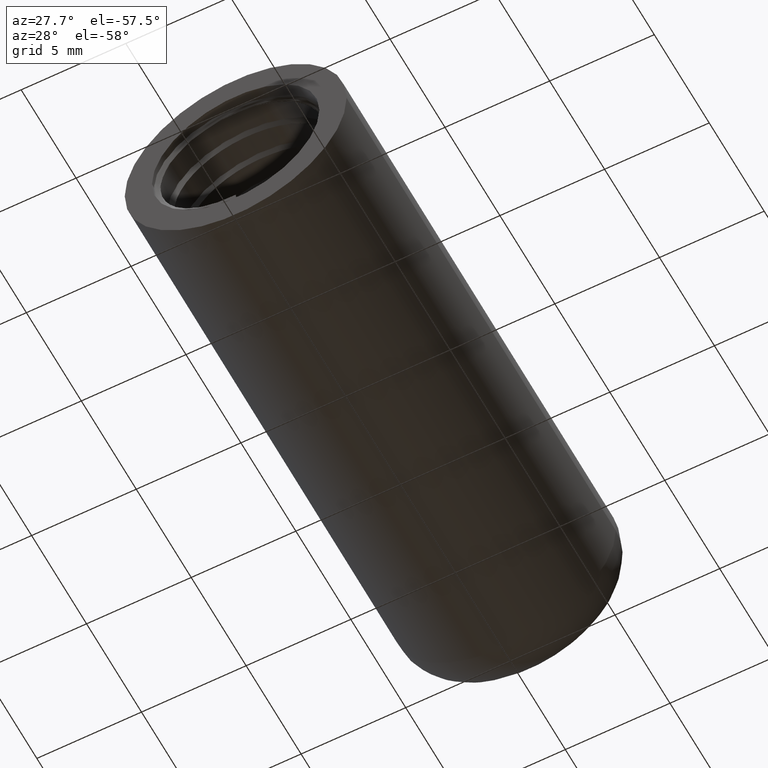
[diagram: clean part render]
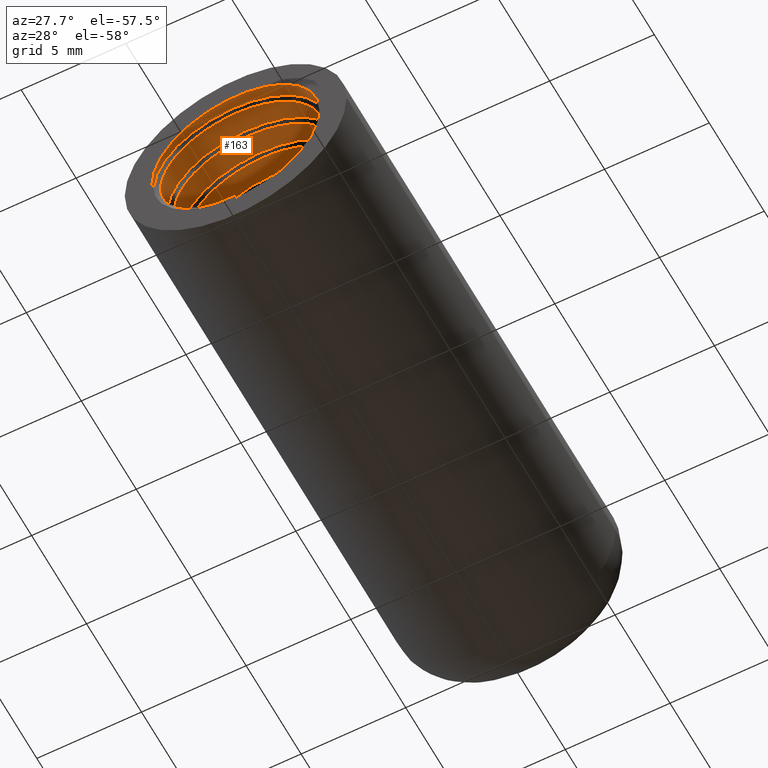
[diagram: same view with one face highlighted and labeled with its STEP entity id]
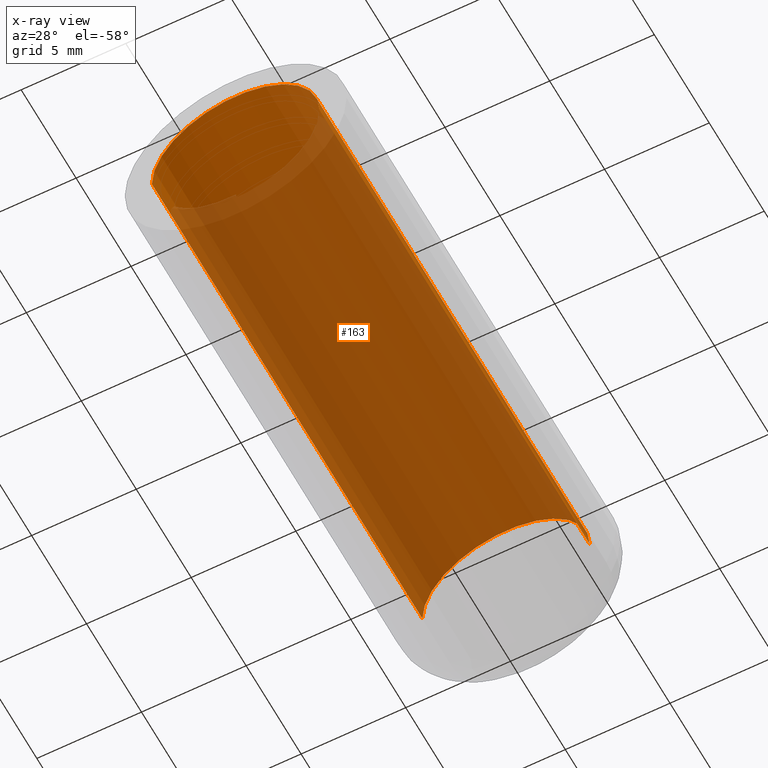
[diagram: x-ray of the same camera — body ghosted, the highlighted face saturated]
A machine part, auxiliary view. The second image highlights one B-rep face of the part: STEP entity #163.
The next image is the same camera in x-ray: the body ghosted, the highlighted face saturated — about 85% of this face is hidden behind the body in this view.
In plain terms, the highlighted cylindrical surface (partial cylindrical patch) has radius 4 mm, axis along (-0, 1, 0).
Its self-contained STEP definition (entity closure, byte-faithful):
#163=ADVANCED_FACE('',(#333),#334,.F.);
#333=FACE_OUTER_BOUND('',#2164,.T.);
#334=CYLINDRICAL_SURFACE('',#2165,4.0);
#2164=EDGE_LOOP('',(#2816,#2817,#2818,#2819));
#2165=AXIS2_PLACEMENT_3D('',#2820,#2821,#2822);
#2816=ORIENTED_EDGE('',*,*,#2862,.T.);
#2817=ORIENTED_EDGE('',*,*,#3059,.T.);
#2818=ORIENTED_EDGE('',*,*,#2864,.T.);
#2819=ORIENTED_EDGE('',*,*,#2859,.F.);
#2820=CARTESIAN_POINT('',(0.0,0.0,0.0));
#2821=DIRECTION('',(-0.0,1.0,0.0));
#2822=DIRECTION('',(1.0,0.0,-6.12323399573677E-17));
#2859=EDGE_CURVE('',#3078,#3081,#3082,.T.);
#2862=EDGE_CURVE('',#3078,#3086,#3087,.T.);
#2864=EDGE_CURVE('',#3089,#3081,#3090,.T.);
#3059=EDGE_CURVE('',#3086,#3089,#3412,.T.);
#3078=VERTEX_POINT('',#4282);
#3081=VERTEX_POINT('',#4285);
#3082=CIRCLE('',#4286,4.0);
#3086=VERTEX_POINT('',#4290);
#3087=LINE('',#4291,#4292);
#3089=VERTEX_POINT('',#4294);
#3090=LINE('',#4295,#4296);
#3412=CIRCLE('',#4728,4.0);
#4282=CARTESIAN_POINT('',(4.0,24.6100323380645,-2.44929359829471E-16));
#4285=CARTESIAN_POINT('',(-4.0,24.6100323380645,-2.4492935982947E-16));
#4286=AXIS2_PLACEMENT_3D('',#4733,#4734,#4735);
#4290=CARTESIAN_POINT('',(4.0,0.0,-2.44929359829471E-16));
#4291=CARTESIAN_POINT('',(4.0,0.0,2.4492935982947E-16));
#4292=VECTOR('',#4742,1.0);
#4294=CARTESIAN_POINT('',(-4.0,0.0,-2.4492935982947E-16));
#4295=CARTESIAN_POINT('',(-4.0,0.0,-2.4492935982947E-16));
#4296=VECTOR('',#4746,1.0);
#4728=AXIS2_PLACEMENT_3D('',#5153,#5154,#5155);
#4733=CARTESIAN_POINT('',(0.0,24.6100323380645,0.0));
#4734=DIRECTION('',(0.0,-1.0,0.0));
#4735=DIRECTION('',(1.0,0.0,-6.12323399573677E-17));
#4742=DIRECTION('',(0.0,-1.0,0.0));
#4746=DIRECTION('',(-0.0,1.0,-0.0));
#5153=CARTESIAN_POINT('',(0.0,0.0,0.0));
#5154=DIRECTION('',(0.0,-1.0,0.0));
#5155=DIRECTION('',(1.0,0.0,-6.12323399573677E-17));